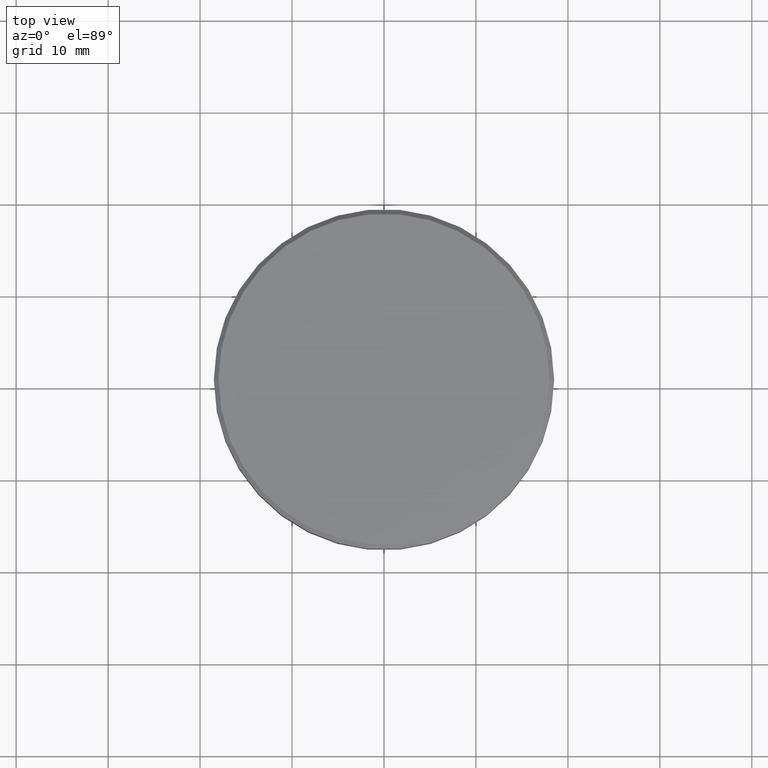
[diagram: clean part render]
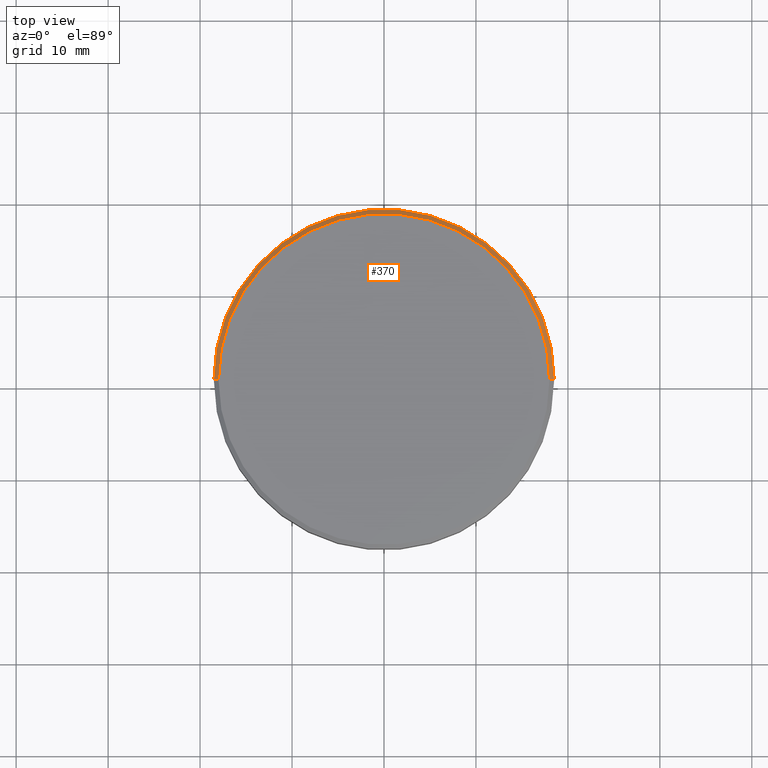
[diagram: same view with one face highlighted and labeled with its STEP entity id]
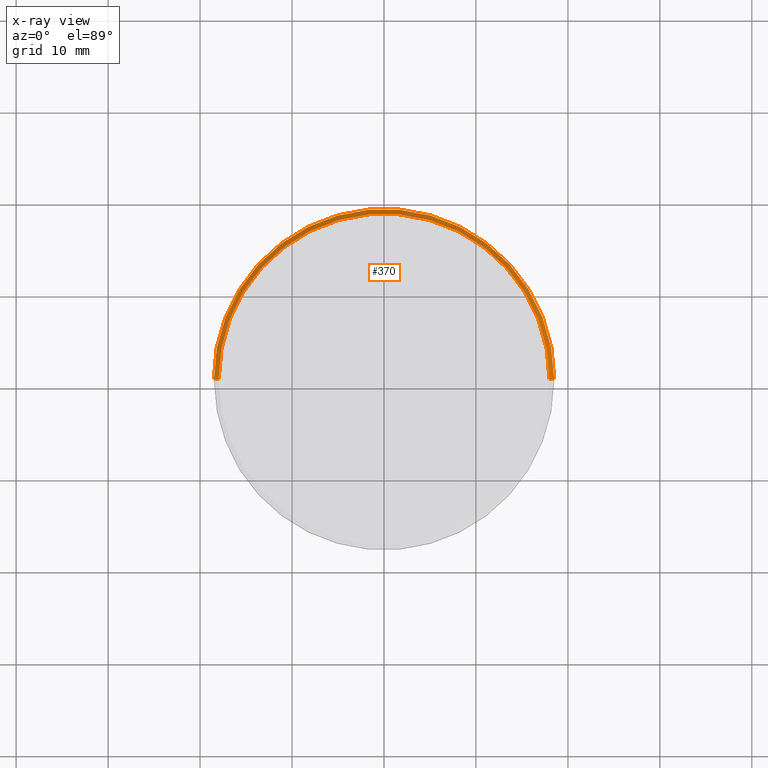
[diagram: x-ray of the same camera — body ghosted, the highlighted face saturated]
A machine part, top view. The second image highlights one B-rep face of the part: STEP entity #370.
The next image is the same camera in x-ray: the body ghosted, the highlighted face saturated — about 0% of this face is hidden behind the body in this view.
In plain terms, the highlighted conical surface has half-angle 45 deg.
Its self-contained STEP definition (entity closure, byte-faithful):
#13 = EDGE_CURVE ( 'NONE', #41, #221, #184, .T. ) ;
#14 = CARTESIAN_POINT ( 'NONE',  ( -18.00000000000001421, 0.000000000000000000, 0.000000000000000000 ) ) ;
#34 = LINE ( 'NONE', #314, #244 ) ;
#41 = VERTEX_POINT ( 'NONE', #14 ) ;
#56 = VECTOR ( 'NONE', #398, 1000.000000000000114 ) ;
#57 = DIRECTION ( 'NONE',  ( 0.000000000000000000, 0.000000000000000000, -1.000000000000000000 ) ) ;
#66 = DIRECTION ( 'NONE',  ( -1.000000000000000000, 0.000000000000000000, 0.000000000000000000 ) ) ;
#82 = EDGE_CURVE ( 'NONE', #389, #122, #34, .T. ) ;
#87 = EDGE_CURVE ( 'NONE', #221, #122, #183, .T. ) ;
#90 = DIRECTION ( 'NONE',  ( 0.000000000000000000, 0.000000000000000000, -1.000000000000000000 ) ) ;
#93 = EDGE_LOOP ( 'NONE', ( #95, #352, #381, #347 ) ) ;
#94 = CONICAL_SURFACE ( 'NONE', #324, 18.00000000000001421, 0.7853981633974447263 ) ;
#95 = ORIENTED_EDGE ( 'NONE', *, *, #289, .F. ) ;
#122 = VERTEX_POINT ( 'NONE', #169 ) ;
#125 = DIRECTION ( 'NONE',  ( 1.000000000000000000, 0.000000000000000000, 0.000000000000000000 ) ) ;
#169 = CARTESIAN_POINT ( 'NONE',  ( 18.50000000000000000, 0.000000000000000000, -0.4999999999999865663 ) ) ;
#183 = CIRCLE ( 'NONE', #333, 18.50000000000000000 ) ;
#184 = LINE ( 'NONE', #392, #56 ) ;
#187 = AXIS2_PLACEMENT_3D ( 'NONE', #206, #188, #125 ) ;
#188 = DIRECTION ( 'NONE',  ( -0.000000000000000000, -0.000000000000000000, 1.000000000000000000 ) ) ;
#194 = CARTESIAN_POINT ( 'NONE',  ( 18.00000000000001421, 2.234980408443920793E-15, 0.000000000000000000 ) ) ;
#198 = DIRECTION ( 'NONE',  ( 0.7071067811865451302, 8.659560562354903276E-17, -0.7071067811865500152 ) ) ;
#206 = CARTESIAN_POINT ( 'NONE',  ( 0.000000000000000000, 0.000000000000000000, 0.000000000000000000 ) ) ;
#221 = VERTEX_POINT ( 'NONE', #357 ) ;
#244 = VECTOR ( 'NONE', #198, 1000.000000000000114 ) ;
#275 = CIRCLE ( 'NONE', #187, 18.00000000000001421 ) ;
#289 = EDGE_CURVE ( 'NONE', #389, #41, #275, .T. ) ;
#314 = CARTESIAN_POINT ( 'NONE',  ( 18.00000000000001421, 2.204364238465237794E-15, 0.000000000000000000 ) ) ;
#324 = AXIS2_PLACEMENT_3D ( 'NONE', #369, #57, #66 ) ;
#333 = AXIS2_PLACEMENT_3D ( 'NONE', #401, #90, #368 ) ;
#347 = ORIENTED_EDGE ( 'NONE', *, *, #13, .F. ) ;
#352 = ORIENTED_EDGE ( 'NONE', *, *, #82, .T. ) ;
#357 = CARTESIAN_POINT ( 'NONE',  ( -18.50000000000000000, 2.265596578422603396E-15, -0.4999999999999865663 ) ) ;
#368 = DIRECTION ( 'NONE',  ( 1.000000000000000000, 0.000000000000000000, 0.000000000000000000 ) ) ;
#369 = CARTESIAN_POINT ( 'NONE',  ( 0.000000000000000000, 0.000000000000000000, 0.000000000000000000 ) ) ;
#370 = ADVANCED_FACE ( 'NONE', ( #408 ), #94, .T. ) ;
#381 = ORIENTED_EDGE ( 'NONE', *, *, #87, .F. ) ;
#389 = VERTEX_POINT ( 'NONE', #194 ) ;
#392 = CARTESIAN_POINT ( 'NONE',  ( -18.00000000000001421, 0.000000000000000000, 0.000000000000000000 ) ) ;
#398 = DIRECTION ( 'NONE',  ( -0.7071067811865451302, 0.000000000000000000, -0.7071067811865500152 ) ) ;
#401 = CARTESIAN_POINT ( 'NONE',  ( 0.000000000000000000, 0.000000000000000000, -0.4999999999999865663 ) ) ;
#408 = FACE_OUTER_BOUND ( 'NONE', #93, .T. ) ;